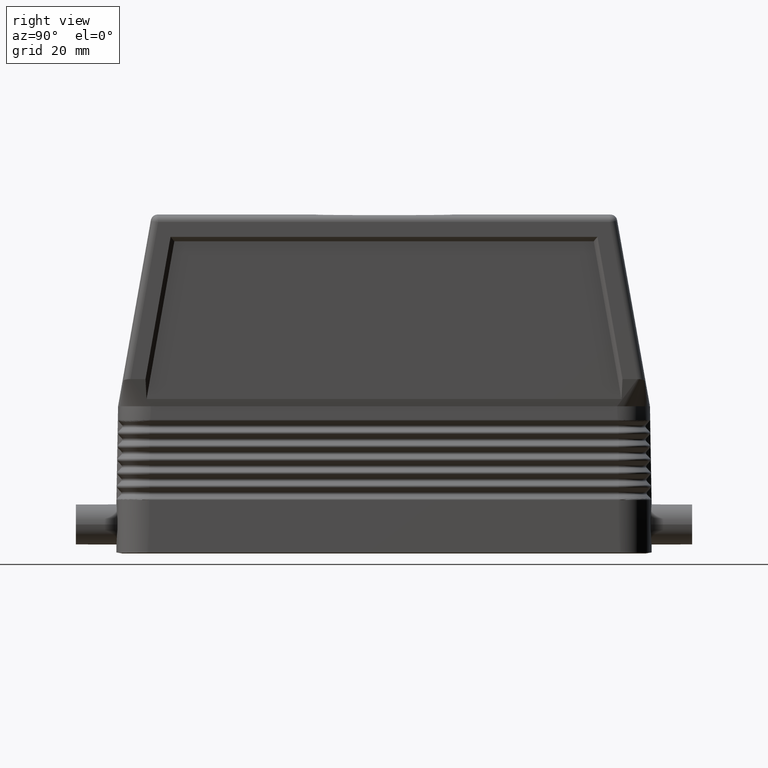
[diagram: clean part render]
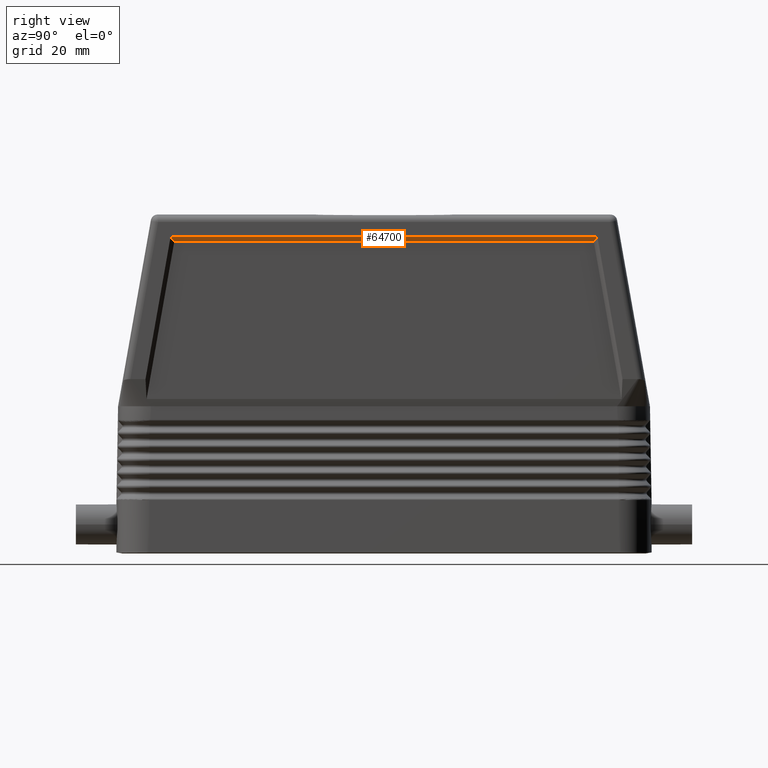
[diagram: same view with one face highlighted and labeled with its STEP entity id]
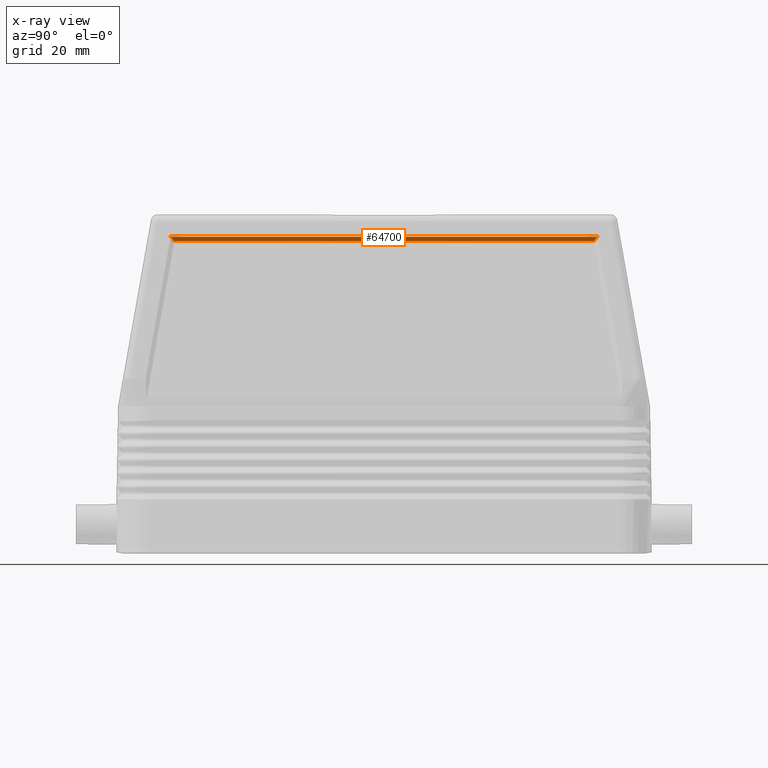
[diagram: x-ray of the same camera — body ghosted, the highlighted face saturated]
A machine part, right view. The second image highlights one B-rep face of the part: STEP entity #64700.
The next image is the same camera in x-ray: the body ghosted, the highlighted face saturated — about 0% of this face is hidden behind the body in this view.
In plain terms, the highlighted planar face has unit normal (-0.7071, -0, 0.7071).
Its self-contained STEP definition (entity closure, byte-faithful):
#61770=CARTESIAN_POINT('',(418.082514349959,78.2647336563271,
71.2326290096627));
#61780=VERTEX_POINT('',#61770);
#61810=CARTESIAN_POINT('',(418.082514349959,44.3725639329094,
71.2326290096627));
#61820=DIRECTION('',(0.,1.,2.7890444774737E-31));
#61830=VECTOR('',#61820,1.);
#61840=LINE('',#61810,#61830);
#61850=CARTESIAN_POINT('',(418.082514349959,-17.4522032844931,
71.2326290096627));
#61860=VERTEX_POINT('',#61850);
#61870=EDGE_CURVE('',#61860,#61780,#61840,.T.);
#64010=CARTESIAN_POINT('',(417.082514349959,-16.6129814137838,
70.2326290096627));
#64020=VERTEX_POINT('',#64010);
#64050=CARTESIAN_POINT('',(417.082514349959,44.3725639329094,
70.2326290096627));
#64060=DIRECTION('',(0.,-1.,-2.7890444774737E-31));
#64070=VECTOR('',#64060,1.);
#64080=LINE('',#64050,#64070);
#64090=CARTESIAN_POINT('',(417.082514349959,77.4255117856178,
70.2326290096627));
#64100=VERTEX_POINT('',#64090);
#64110=EDGE_CURVE('',#64100,#64020,#64080,.T.);
#64360=CARTESIAN_POINT('',(402.286207747079,-4.19559730692635,
55.4363224067827));
#64370=DIRECTION('',(-0.608097334894156,0.510328582963221,
-0.608097334894156));
#64380=VECTOR('',#64370,1.);
#64390=LINE('',#64360,#64380);
#64400=EDGE_CURVE('',#61860,#64020,#64390,.T.);
#64540=CARTESIAN_POINT('',(417.082514349959,44.3725639329094,
70.2326290096626));
#64550=DIRECTION('',(-0.707106781186547,-1.97215226305254E-31,
0.707106781186548));
#64560=DIRECTION('',(0.,1.,2.7890444774737E-31));
#64570=AXIS2_PLACEMENT_3D('',#64540,#64550,#64560);
#64580=PLANE('',#64570);
#64590=CARTESIAN_POINT('',(402.286207747079,65.0081276787603,
55.4363224067827));
#64600=DIRECTION('',(-0.608097334894156,-0.510328582963221,
-0.608097334894156));
#64610=VECTOR('',#64600,1.);
#64620=LINE('',#64590,#64610);
#64630=EDGE_CURVE('',#61780,#64100,#64620,.T.);
#64640=ORIENTED_EDGE('',*,*,#64630,.F.);
#64650=ORIENTED_EDGE('',*,*,#64110,.F.);
#64660=ORIENTED_EDGE('',*,*,#64400,.T.);
#64670=ORIENTED_EDGE('',*,*,#61870,.F.);
#64680=EDGE_LOOP('',(#64670,#64660,#64650,#64640));
#64690=FACE_OUTER_BOUND('',#64680,.T.);
#64700=ADVANCED_FACE('',(#64690),#64580,.F.);